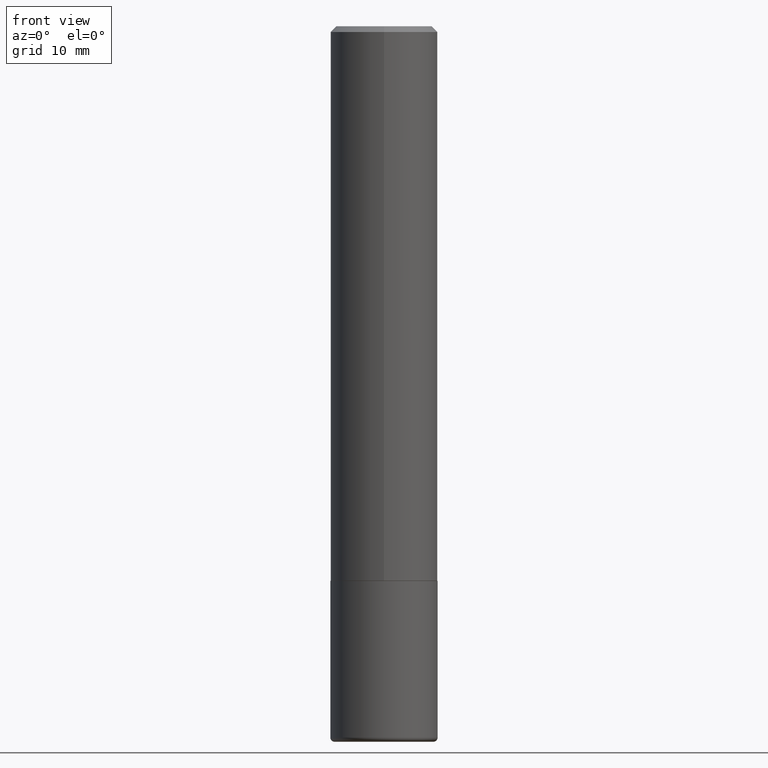
[diagram: clean part render]
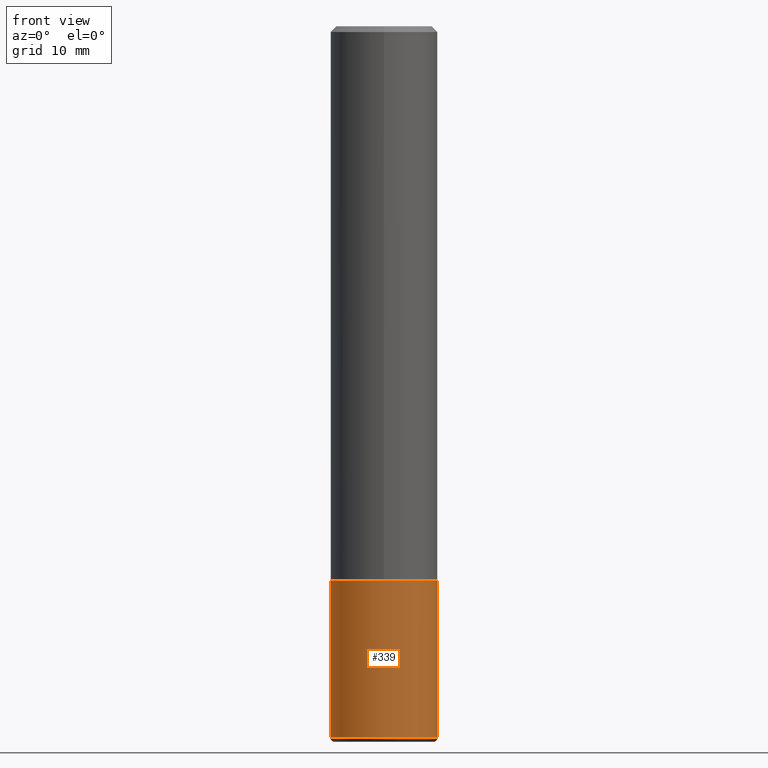
[diagram: same view with one face highlighted and labeled with its STEP entity id]
A machine part, front view. The second image highlights one B-rep face of the part: STEP entity #339.
In plain terms, the highlighted cylindrical surface (partial cylindrical patch) has radius 4.7625 mm, axis along (-0, 0, 1).
Its self-contained STEP definition (entity closure, byte-faithful):
#20 = DIRECTION ( 'NONE',  ( -2.445468806185136597E-29, 3.491481338843145583E-15, 1.000000000000000000 ) ) ;
#30 = ORIENTED_EDGE ( 'NONE', *, *, #47, .T. ) ;
#31 = VECTOR ( 'NONE', #175, 39.37007874015748143 ) ;
#47 = EDGE_CURVE ( 'NONE', #259, #322, #315, .T. ) ;
#50 = CARTESIAN_POINT ( 'NONE',  ( 0.1874999999999999722, -1.309305502066174811E-15, 9.142831454617378210E-30 ) ) ;
#55 = VERTEX_POINT ( 'NONE', #234 ) ;
#59 = CYLINDRICAL_SURFACE ( 'NONE', #89, 0.1874999999999999722 ) ;
#60 = EDGE_CURVE ( 'NONE', #259, #55, #359, .T. ) ;
#76 = DIRECTION ( 'NONE',  ( -2.445468806185136877E-29, 3.491481338843145188E-15, 1.000000000000000000 ) ) ;
#83 = ORIENTED_EDGE ( 'NONE', *, *, #60, .F. ) ;
#89 = AXIS2_PLACEMENT_3D ( 'NONE', #102, #256, #361 ) ;
#102 = CARTESIAN_POINT ( 'NONE',  ( 0.000000000000000000, 0.000000000000000000, 0.000000000000000000 ) ) ;
#110 = VECTOR ( 'NONE', #76, 39.37007874015748143 ) ;
#136 = ORIENTED_EDGE ( 'NONE', *, *, #195, .T. ) ;
#160 = DIRECTION ( 'NONE',  ( -2.445468806185136597E-29, 3.491481338843145583E-15, 1.000000000000000000 ) ) ;
#165 = ORIENTED_EDGE ( 'NONE', *, *, #220, .F. ) ;
#175 = DIRECTION ( 'NONE',  ( -2.445468806185136877E-29, 3.491481338843145188E-15, 1.000000000000000000 ) ) ;
#185 = AXIS2_PLACEMENT_3D ( 'NONE', #345, #160, #293 ) ;
#195 = EDGE_CURVE ( 'NONE', #322, #228, #212, .T. ) ;
#212 = LINE ( 'NONE', #50, #31 ) ;
#220 = EDGE_CURVE ( 'NONE', #55, #228, #285, .T. ) ;
#226 = AXIS2_PLACEMENT_3D ( 'NONE', #304, #20, #282 ) ;
#228 = VERTEX_POINT ( 'NONE', #407 ) ;
#234 = CARTESIAN_POINT ( 'NONE',  ( -0.1874999999999999722, -6.389143351301428514E-15, -1.937999999999999945 ) ) ;
#256 = DIRECTION ( 'NONE',  ( -2.445468806185136597E-29, 3.491481338843145583E-15, 1.000000000000000000 ) ) ;
#259 = VERTEX_POINT ( 'NONE', #362 ) ;
#282 = DIRECTION ( 'NONE',  ( 1.000000000000000000, -6.982962677686269077E-15, 0.000000000000000000 ) ) ;
#285 = CIRCLE ( 'NONE', #226, 0.1874999999999999722 ) ;
#293 = DIRECTION ( 'NONE',  ( 1.000000000000000000, -6.982962677686269077E-15, 0.000000000000000000 ) ) ;
#304 = CARTESIAN_POINT ( 'NONE',  ( 4.739318546386794397E-29, -6.766490834678016045E-15, -1.937999999999999945 ) ) ;
#315 = CIRCLE ( 'NONE', #185, 0.1874999999999999722 ) ;
#322 = VERTEX_POINT ( 'NONE', #332 ) ;
#328 = CARTESIAN_POINT ( 'NONE',  ( -0.1874999999999999722, 1.332267629550187651E-15, -9.223003294227946589E-30 ) ) ;
#332 = CARTESIAN_POINT ( 'NONE',  ( 0.1875000000000000555, -9.985636629091391688E-15, -2.484999999999999876 ) ) ;
#339 = ADVANCED_FACE ( 'NONE', ( #414 ), #59, .T. ) ;
#345 = CARTESIAN_POINT ( 'NONE',  ( 6.076989983370064174E-29, -8.676331127025216680E-15, -2.484999999999999876 ) ) ;
#349 = EDGE_LOOP ( 'NONE', ( #83, #30, #136, #165 ) ) ;
#359 = LINE ( 'NONE', #328, #110 ) ;
#361 = DIRECTION ( 'NONE',  ( 1.000000000000000000, -6.982962677686266711E-15, 4.876176775795935793E-29 ) ) ;
#362 = CARTESIAN_POINT ( 'NONE',  ( -0.1875000000000000555, -7.344063497475028832E-15, -2.484999999999999876 ) ) ;
#407 = CARTESIAN_POINT ( 'NONE',  ( 0.1874999999999999722, -8.075796336744191053E-15, -1.937999999999999945 ) ) ;
#414 = FACE_OUTER_BOUND ( 'NONE', #349, .T. ) ;